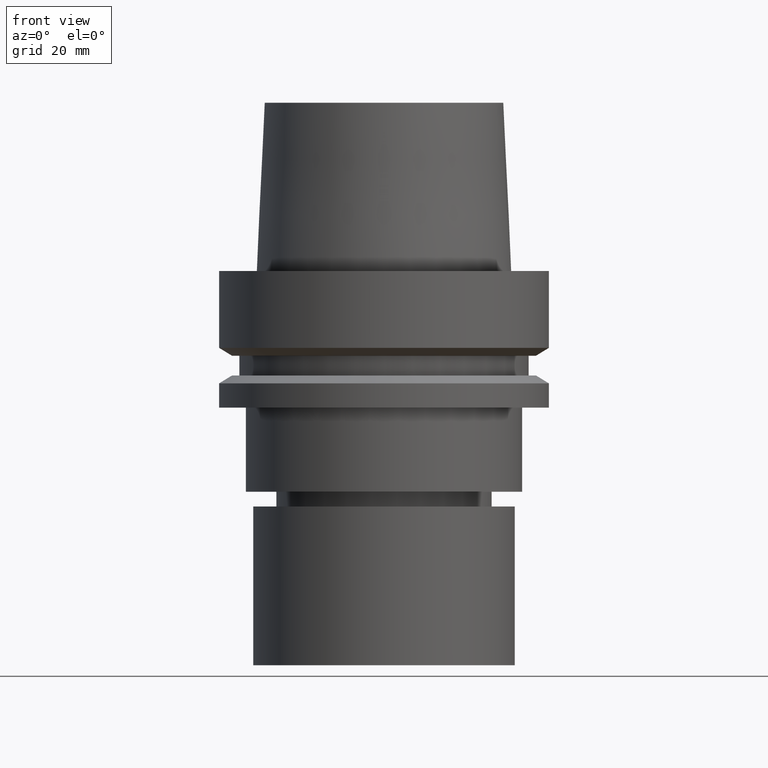
[diagram: clean part render]
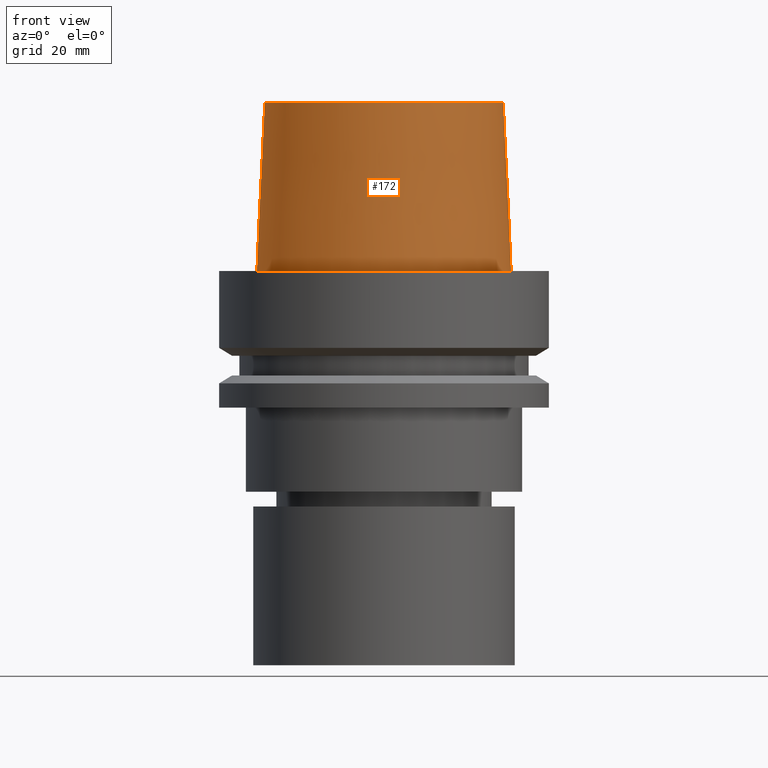
[diagram: same view with one face highlighted and labeled with its STEP entity id]
A machine part, front view. The second image highlights one B-rep face of the part: STEP entity #172.
In plain terms, the highlighted conical surface has half-angle 2.862 deg.
Its self-contained STEP definition (entity closure, byte-faithful):
#132=EDGE_CURVE('Unnamed[1]',#289,#289,#290,.T.);
#166=EDGE_CURVE('Unnamed[1]',#340,#340,#341,.T.);
#172=ADVANCED_FACE('Unnamed[1]',(#348,#349),#350,.T.);
#289=VERTEX_POINT('',#486);
#290=CIRCLE('',#487,24.315);
#340=VERTEX_POINT('',#550);
#341=CIRCLE('',#551,22.715);
#348=FACE_BOUND('',#560,.T.);
#349=FACE_BOUND('',#561,.T.);
#350=CONICAL_SURFACE('',#562,23.515,0.0499583957219433);
#486=CARTESIAN_POINT('',(-2.99705514225764E-031,24.315,2.97772869212679E-015));
#487=AXIS2_PLACEMENT_3D('',#678,#679,#680);
#550=CARTESIAN_POINT('',(-1.95943487863576E-015,22.715,32.0));
#551=AXIS2_PLACEMENT_3D('',#732,#733,#734);
#560=EDGE_LOOP('',(#741));
#561=EDGE_LOOP('',(#742));
#562=AXIS2_PLACEMENT_3D('',#743,#744,#745);
#678=CARTESIAN_POINT('',(0.0,0.0,0.0));
#679=DIRECTION('',(-6.12323399573677E-017,-1.22464679914735E-016,1.0));
#680=DIRECTION('',(-1.23259516440783E-032,1.0,1.22464679914735E-016));
#732=CARTESIAN_POINT('',(-1.95943487863576E-015,-3.91886975727153E-015,32.0));
#733=DIRECTION('',(-6.12323399573676E-017,-1.22464679914735E-016,1.0));
#734=DIRECTION('',(-1.23259516440783E-032,1.0,1.22464679914735E-016));
#741=ORIENTED_EDGE('',*,*,#166,.F.);
#742=ORIENTED_EDGE('',*,*,#132,.T.);
#743=CARTESIAN_POINT('',(-9.79717439317882E-016,-1.95943487863576E-015,16.0));
#744=DIRECTION('',(6.12323399573677E-017,1.22464679914735E-016,-1.0));
#745=DIRECTION('',(-1.23259516440783E-032,1.0,1.22464679914735E-016));